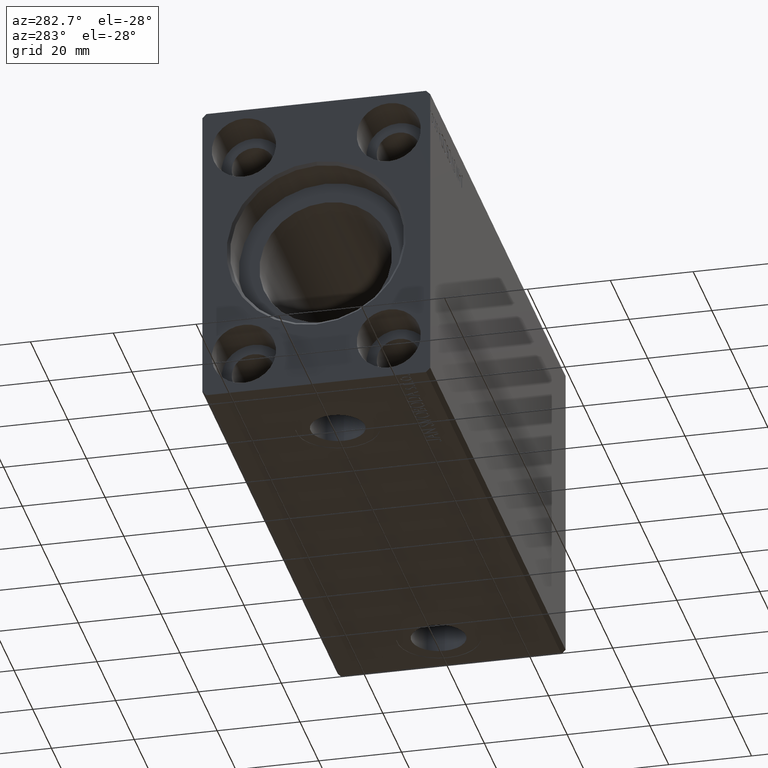
[diagram: clean part render]
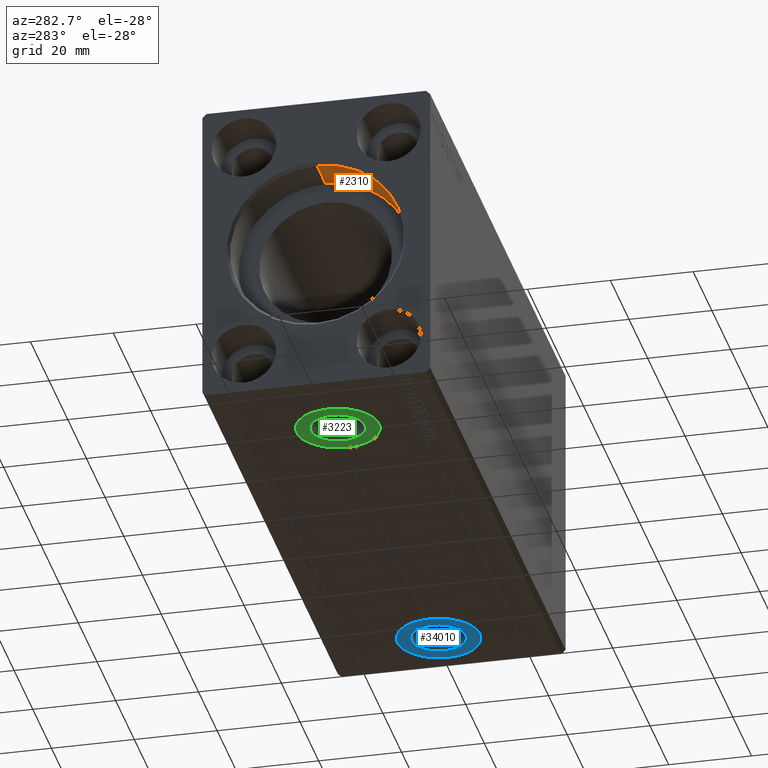
[diagram: same view with three faces highlighted in distinct colors, each labeled with its STEP entity id]
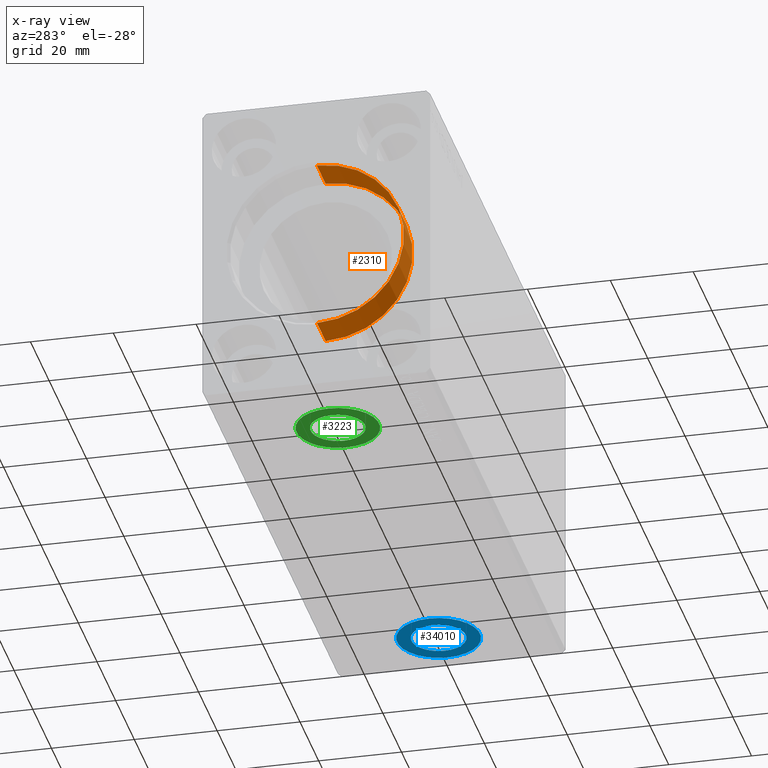
[diagram: x-ray of the same camera — body ghosted, the three highlighted faces saturated]
A machine part, auxiliary view with three faces highlighted in distinct colors.
The next image is the same camera in x-ray (body ghosted, the three faces saturated) — at least one of them is partly hidden behind the body in this view.
Their STEP definitions:

[orange] entity #2310 — the highlighted cylindrical surface (partial cylindrical patch) has radius 21 mm, axis along (-1, -0, -0).
#476 = ORIENTED_EDGE ( 'NONE', *, *, #7383, .F. ) ;
#2276 = DIRECTION ( 'NONE',  ( -1.000000000000000000, -0.000000000000000000, -0.000000000000000000 ) ) ;
#2310 = ADVANCED_FACE ( 'NONE', ( #25129 ), #41722, .F. ) ;
#2429 = VERTEX_POINT ( 'NONE', #24421 ) ;
#5895 = AXIS2_PLACEMENT_3D ( 'NONE', #15574, #6086, #22241 ) ;
#6086 = DIRECTION ( 'NONE',  ( -1.000000000000000000, 0.000000000000000000, 0.000000000000000000 ) ) ;
#7383 = EDGE_CURVE ( 'NONE', #21236, #22416, #40764, .T. ) ;
#8222 = CARTESIAN_POINT ( 'NONE',  ( 10.00000000000000000, 2.571758278209441661E-15, -21.00000000000000000 ) ) ;
#9128 = CARTESIAN_POINT ( 'NONE',  ( 10.00000000000000000, 0.000000000000000000, 21.00000000000000000 ) ) ;
#9190 = EDGE_LOOP ( 'NONE', ( #17582, #25219, #19039, #476 ) ) ;
#9949 = DIRECTION ( 'NONE',  ( -1.000000000000000000, 0.000000000000000000, 0.000000000000000000 ) ) ;
#12963 = AXIS2_PLACEMENT_3D ( 'NONE', #19850, #9949, #20271 ) ;
#15574 = CARTESIAN_POINT ( 'NONE',  ( 10.00000000000000000, 0.000000000000000000, 0.000000000000000000 ) ) ;
#17582 = ORIENTED_EDGE ( 'NONE', *, *, #29547, .F. ) ;
#19039 = ORIENTED_EDGE ( 'NONE', *, *, #42388, .T. ) ;
#19227 = CARTESIAN_POINT ( 'NONE',  ( 10.00000000000000000, 2.571758278209441661E-15, -21.00000000000000000 ) ) ;
#19850 = CARTESIAN_POINT ( 'NONE',  ( 0.7000000000000166089, 0.000000000000000000, 0.000000000000000000 ) ) ;
#20271 = DIRECTION ( 'NONE',  ( 0.000000000000000000, 0.000000000000000000, -1.000000000000000000 ) ) ;
#21156 = DIRECTION ( 'NONE',  ( -1.000000000000000000, -0.000000000000000000, -0.000000000000000000 ) ) ;
#21236 = VERTEX_POINT ( 'NONE', #9128 ) ;
#21894 = DIRECTION ( 'NONE',  ( 0.000000000000000000, 0.000000000000000000, 1.000000000000000000 ) ) ;
#22241 = DIRECTION ( 'NONE',  ( 0.000000000000000000, 0.000000000000000000, 1.000000000000000000 ) ) ;
#22416 = VERTEX_POINT ( 'NONE', #42227 ) ;
#23113 = CIRCLE ( 'NONE', #5895, 21.00000000000000000 ) ;
#23875 = VECTOR ( 'NONE', #28509, 1000.000000000000000 ) ;
#24421 = CARTESIAN_POINT ( 'NONE',  ( 0.7000000000000166089, 2.571758278209441661E-15, -21.00000000000000000 ) ) ;
#25129 = FACE_OUTER_BOUND ( 'NONE', #9190, .T. ) ;
#25219 = ORIENTED_EDGE ( 'NONE', *, *, #38451, .T. ) ;
#25350 = CIRCLE ( 'NONE', #12963, 21.00000000000000000 ) ;
#25508 = AXIS2_PLACEMENT_3D ( 'NONE', #38279, #2276, #21894 ) ;
#28509 = DIRECTION ( 'NONE',  ( -1.000000000000000000, -0.000000000000000000, -0.000000000000000000 ) ) ;
#29547 = EDGE_CURVE ( 'NONE', #34923, #21236, #23113, .T. ) ;
#34923 = VERTEX_POINT ( 'NONE', #8222 ) ;
#36616 = VECTOR ( 'NONE', #21156, 1000.000000000000000 ) ;
#37542 = CARTESIAN_POINT ( 'NONE',  ( 10.00000000000000000, 0.000000000000000000, 21.00000000000000000 ) ) ;
#38279 = CARTESIAN_POINT ( 'NONE',  ( 10.00000000000000000, 0.000000000000000000, 0.000000000000000000 ) ) ;
#38451 = EDGE_CURVE ( 'NONE', #34923, #2429, #38629, .T. ) ;
#38629 = LINE ( 'NONE', #19227, #23875 ) ;
#40764 = LINE ( 'NONE', #37542, #36616 ) ;
#41722 = CYLINDRICAL_SURFACE ( 'NONE', #25508, 21.00000000000000000 ) ;
#42227 = CARTESIAN_POINT ( 'NONE',  ( 0.7000000000000166089, 0.000000000000000000, 21.00000000000000000 ) ) ;
#42388 = EDGE_CURVE ( 'NONE', #2429, #22416, #25350, .T. ) ;

[blue] entity #34010 — the highlighted planar face has unit normal (0, 0, -1).
#336 = DIRECTION ( 'NONE',  ( -1.000000000000000000, 0.000000000000000000, 0.000000000000000000 ) ) ;
#2671 = DIRECTION ( 'NONE',  ( 0.000000000000000000, 0.000000000000000000, -1.000000000000000000 ) ) ;
#3024 = CARTESIAN_POINT ( 'NONE',  ( 130.9999999999999432, -1.771764358548707728E-14, -37.39999999999999147 ) ) ;
#3138 = CARTESIAN_POINT ( 'NONE',  ( 130.9999999999999432, -1.771764358548707728E-14, -37.39999999999999147 ) ) ;
#5205 = CIRCLE ( 'NONE', #29971, 9.999999999999994671 ) ;
#5367 = EDGE_CURVE ( 'NONE', #9087, #12222, #13180, .T. ) ;
#7114 = EDGE_CURVE ( 'NONE', #26458, #39614, #35911, .T. ) ;
#8893 = DIRECTION ( 'NONE',  ( 0.000000000000000000, 0.000000000000000000, -1.000000000000000000 ) ) ;
#9087 = VERTEX_POINT ( 'NONE', #27080 ) ;
#9361 = CARTESIAN_POINT ( 'NONE',  ( 140.9999999999999716, -1.649299678633972580E-14, -37.39999999999999147 ) ) ;
#9510 = FACE_OUTER_BOUND ( 'NONE', #17044, .T. ) ;
#11165 = ORIENTED_EDGE ( 'NONE', *, *, #28680, .T. ) ;
#12151 = ORIENTED_EDGE ( 'NONE', *, *, #7114, .T. ) ;
#12222 = VERTEX_POINT ( 'NONE', #17425 ) ;
#13180 = CIRCLE ( 'NONE', #29026, 6.580000000000002736 ) ;
#16042 = DIRECTION ( 'NONE',  ( -1.000000000000000000, 0.000000000000000000, 0.000000000000000000 ) ) ;
#17044 = EDGE_LOOP ( 'NONE', ( #11165, #12151 ) ) ;
#17306 = CARTESIAN_POINT ( 'NONE',  ( 120.9999999999999574, -1.771764358548707728E-14, -37.39999999999999147 ) ) ;
#17425 = CARTESIAN_POINT ( 'NONE',  ( 124.4199999999999449, -1.771764358548707728E-14, -37.39999999999999147 ) ) ;
#17609 = ORIENTED_EDGE ( 'NONE', *, *, #31646, .F. ) ;
#18424 = CARTESIAN_POINT ( 'NONE',  ( 130.9999999999999432, -1.771764358548707728E-14, -37.39999999999999147 ) ) ;
#21782 = AXIS2_PLACEMENT_3D ( 'NONE', #22078, #2671, #16042 ) ;
#22019 = DIRECTION ( 'NONE',  ( -1.000000000000000000, 0.000000000000000000, 0.000000000000000000 ) ) ;
#22078 = CARTESIAN_POINT ( 'NONE',  ( 130.9999999999999432, -1.771764358548707728E-14, -37.39999999999999147 ) ) ;
#22465 = CIRCLE ( 'NONE', #21782, 6.580000000000002736 ) ;
#24196 = AXIS2_PLACEMENT_3D ( 'NONE', #18424, #34152, #27469 ) ;
#26089 = DIRECTION ( 'NONE',  ( 0.000000000000000000, 0.000000000000000000, -1.000000000000000000 ) ) ;
#26458 = VERTEX_POINT ( 'NONE', #9361 ) ;
#27080 = CARTESIAN_POINT ( 'NONE',  ( 137.5799999999999557, -1.691182599164811824E-14, -37.39999999999999147 ) ) ;
#27311 = AXIS2_PLACEMENT_3D ( 'NONE', #3024, #26089, #39236 ) ;
#27469 = DIRECTION ( 'NONE',  ( -1.000000000000000000, 0.000000000000000000, 0.000000000000000000 ) ) ;
#27645 = EDGE_LOOP ( 'NONE', ( #17609, #34870 ) ) ;
#28680 = EDGE_CURVE ( 'NONE', #39614, #26458, #5205, .T. ) ;
#29026 = AXIS2_PLACEMENT_3D ( 'NONE', #3138, #29860, #336 ) ;
#29328 = FACE_BOUND ( 'NONE', #27645, .T. ) ;
#29860 = DIRECTION ( 'NONE',  ( 0.000000000000000000, 0.000000000000000000, -1.000000000000000000 ) ) ;
#29971 = AXIS2_PLACEMENT_3D ( 'NONE', #39046, #8893, #22019 ) ;
#31646 = EDGE_CURVE ( 'NONE', #12222, #9087, #22465, .T. ) ;
#34010 = ADVANCED_FACE ( 'NONE', ( #29328, #9510 ), #35794, .T. ) ;
#34152 = DIRECTION ( 'NONE',  ( 0.000000000000000000, 0.000000000000000000, -1.000000000000000000 ) ) ;
#34870 = ORIENTED_EDGE ( 'NONE', *, *, #5367, .F. ) ;
#35794 = PLANE ( 'NONE',  #27311 ) ;
#35911 = CIRCLE ( 'NONE', #24196, 9.999999999999994671 ) ;
#39046 = CARTESIAN_POINT ( 'NONE',  ( 130.9999999999999432, -1.771764358548707728E-14, -37.39999999999999147 ) ) ;
#39236 = DIRECTION ( 'NONE',  ( -1.000000000000000000, 0.000000000000000000, -0.000000000000000000 ) ) ;
#39614 = VERTEX_POINT ( 'NONE', #17306 ) ;

[green] entity #3223 — the highlighted planar face has unit normal (0, 0, -1).
#227 = EDGE_CURVE ( 'NONE', #34752, #32442, #11661, .T. ) ;
#410 = ORIENTED_EDGE ( 'NONE', *, *, #7166, .T. ) ;
#974 = CARTESIAN_POINT ( 'NONE',  ( 23.00000000000000000, -3.533115609439951465E-15, -37.39999999999999147 ) ) ;
#3223 = ADVANCED_FACE ( 'NONE', ( #3554, #36321 ), #42151, .T. ) ;
#3554 = FACE_BOUND ( 'NONE', #14791, .T. ) ;
#4171 = AXIS2_PLACEMENT_3D ( 'NONE', #17952, #31107, #5035 ) ;
#4360 = CARTESIAN_POINT ( 'NONE',  ( 33.00000000000000000, -2.308468810292598801E-15, -37.39999999999999147 ) ) ;
#4409 = EDGE_CURVE ( 'NONE', #15309, #11945, #28994, .T. ) ;
#5035 = DIRECTION ( 'NONE',  ( -1.000000000000000000, 0.000000000000000000, 0.000000000000000000 ) ) ;
#6837 = CARTESIAN_POINT ( 'NONE',  ( 23.00000000000000000, -3.533115609439951465E-15, -37.39999999999999147 ) ) ;
#7166 = EDGE_CURVE ( 'NONE', #11945, #15309, #37966, .T. ) ;
#9611 = DIRECTION ( 'NONE',  ( 0.000000000000000000, 0.000000000000000000, -1.000000000000000000 ) ) ;
#10905 = DIRECTION ( 'NONE',  ( -1.000000000000000000, 0.000000000000000000, 0.000000000000000000 ) ) ;
#11661 = CIRCLE ( 'NONE', #39206, 6.580000000000002736 ) ;
#11945 = VERTEX_POINT ( 'NONE', #4360 ) ;
#14340 = DIRECTION ( 'NONE',  ( 0.000000000000000000, 0.000000000000000000, -1.000000000000000000 ) ) ;
#14462 = CARTESIAN_POINT ( 'NONE',  ( 29.58000000000000185, -2.727298015600992818E-15, -37.39999999999999147 ) ) ;
#14791 = EDGE_LOOP ( 'NONE', ( #37240, #16084 ) ) ;
#15309 = VERTEX_POINT ( 'NONE', #21568 ) ;
#16084 = ORIENTED_EDGE ( 'NONE', *, *, #227, .F. ) ;
#17519 = EDGE_LOOP ( 'NONE', ( #23279, #410 ) ) ;
#17952 = CARTESIAN_POINT ( 'NONE',  ( 23.00000000000000000, -3.533115609439951465E-15, -37.39999999999999147 ) ) ;
#20841 = CARTESIAN_POINT ( 'NONE',  ( 16.41999999999999815, -3.533115609439951465E-15, -37.39999999999999147 ) ) ;
#21333 = AXIS2_PLACEMENT_3D ( 'NONE', #39129, #9611, #36530 ) ;
#21568 = CARTESIAN_POINT ( 'NONE',  ( 13.00000000000000000, -3.533115609439951465E-15, -37.39999999999999147 ) ) ;
#23279 = ORIENTED_EDGE ( 'NONE', *, *, #4409, .T. ) ;
#24250 = DIRECTION ( 'NONE',  ( 0.000000000000000000, 0.000000000000000000, -1.000000000000000000 ) ) ;
#28713 = CIRCLE ( 'NONE', #30772, 6.580000000000002736 ) ;
#28994 = CIRCLE ( 'NONE', #4171, 10.00000000000000000 ) ;
#30772 = AXIS2_PLACEMENT_3D ( 'NONE', #974, #24250, #33541 ) ;
#31107 = DIRECTION ( 'NONE',  ( 0.000000000000000000, 0.000000000000000000, -1.000000000000000000 ) ) ;
#31793 = AXIS2_PLACEMENT_3D ( 'NONE', #42548, #35460, #36084 ) ;
#32442 = VERTEX_POINT ( 'NONE', #20841 ) ;
#33541 = DIRECTION ( 'NONE',  ( -1.000000000000000000, 0.000000000000000000, 0.000000000000000000 ) ) ;
#34752 = VERTEX_POINT ( 'NONE', #14462 ) ;
#35460 = DIRECTION ( 'NONE',  ( 0.000000000000000000, 0.000000000000000000, -1.000000000000000000 ) ) ;
#36084 = DIRECTION ( 'NONE',  ( -1.000000000000000000, 0.000000000000000000, 0.000000000000000000 ) ) ;
#36321 = FACE_OUTER_BOUND ( 'NONE', #17519, .T. ) ;
#36530 = DIRECTION ( 'NONE',  ( -1.000000000000000000, 0.000000000000000000, -0.000000000000000000 ) ) ;
#37240 = ORIENTED_EDGE ( 'NONE', *, *, #39261, .F. ) ;
#37966 = CIRCLE ( 'NONE', #31793, 10.00000000000000000 ) ;
#39129 = CARTESIAN_POINT ( 'NONE',  ( 0.000000000000000000, 0.000000000000000000, -37.39999999999999147 ) ) ;
#39206 = AXIS2_PLACEMENT_3D ( 'NONE', #6837, #14340, #10905 ) ;
#39261 = EDGE_CURVE ( 'NONE', #32442, #34752, #28713, .T. ) ;
#42151 = PLANE ( 'NONE',  #21333 ) ;
#42548 = CARTESIAN_POINT ( 'NONE',  ( 23.00000000000000000, -3.533115609439951465E-15, -37.39999999999999147 ) ) ;